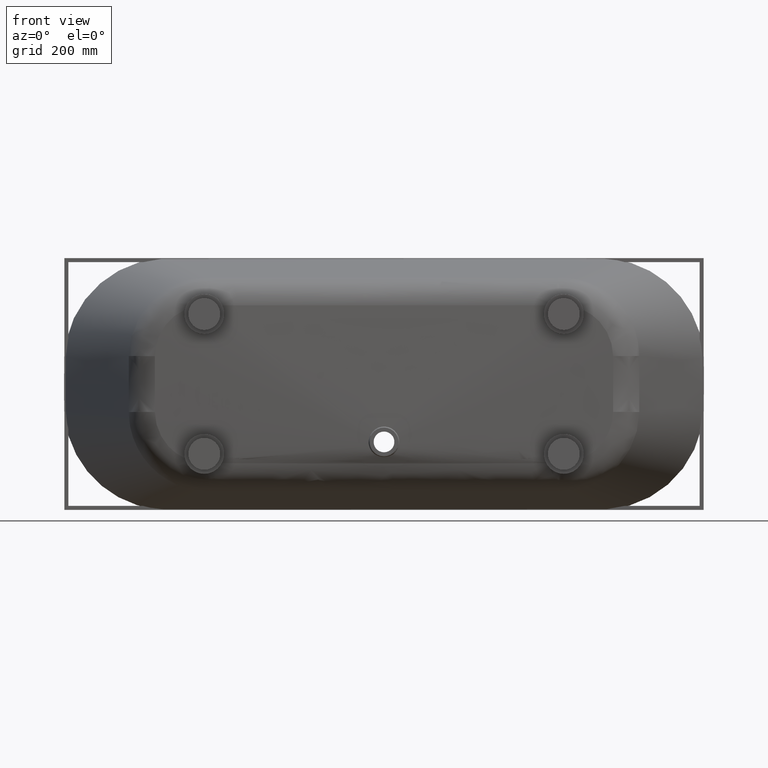
[diagram: clean part render]
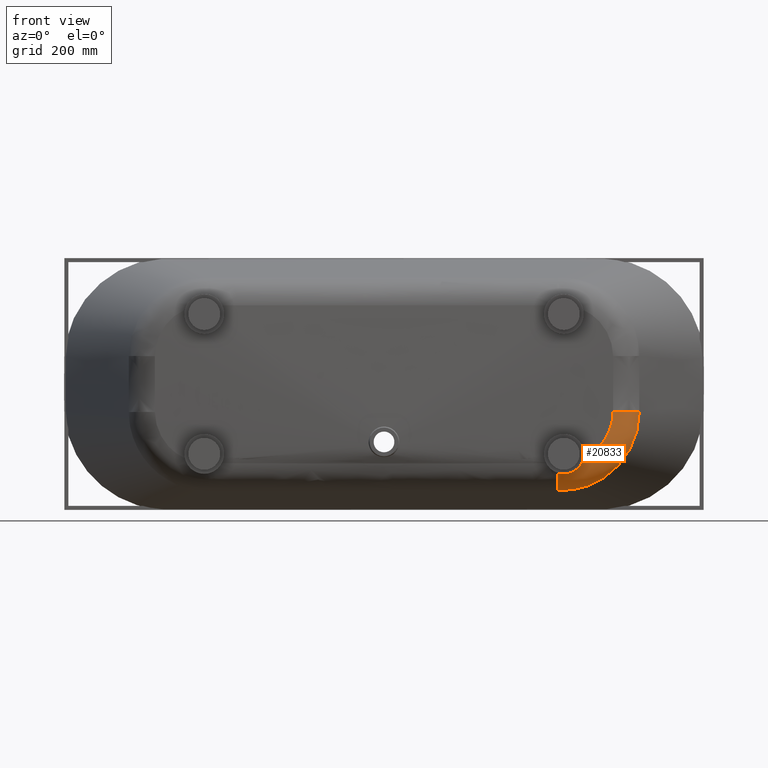
[diagram: same view with one face highlighted and labeled with its STEP entity id]
A machine part, front view. The second image highlights one B-rep face of the part: STEP entity #20833.
In plain terms, the highlighted face is a freeform B-spline surface patch.
Its self-contained STEP definition (entity closure, byte-faithful):
#54 = ORIENTED_EDGE ( 'NONE', *, *, #9191, .T. ) ;
#65 = CARTESIAN_POINT ( 'NONE',  ( 573.0886257730436455, -478.0000000000002842, -78.46987332694597228 ) ) ;
#192 = CARTESIAN_POINT ( 'NONE',  ( 437.4353961503577466, -472.6616392978509680, -223.4628567276149624 ) ) ;
#225 = CARTESIAN_POINT ( 'NONE',  ( 434.9999999996827000, -416.1702683055711987, -266.1599204995744685 ) ) ;
#306 = CARTESIAN_POINT ( 'NONE',  ( 634.5267496900142987, -431.7953774644725513, -111.2699525916564482 ) ) ;
#357 = CARTESIAN_POINT ( 'NONE',  ( 443.7805902656617718, -477.9999999999391207, -258.8936058773050490 ) ) ;
#381 = ORIENTED_EDGE ( 'NONE', *, *, #12260, .F. ) ;
#423 = CARTESIAN_POINT ( 'NONE',  ( 538.1962782915441039, -477.9998007985757909, -157.7312274065932058 ) ) ;
#486 = CARTESIAN_POINT ( 'NONE',  ( 446.6617214467662507, -478.0000000000000000, -196.6383647358110238 ) ) ;
#552 = CARTESIAN_POINT ( 'NONE',  ( 570.7361832692664620, -477.9998978767289373, -95.38358764069305096 ) ) ;
#618 = CARTESIAN_POINT ( 'NONE',  ( 446.8932409166740740, -416.1702683055699481, -266.1599204995746391 ) ) ;
#743 = CARTESIAN_POINT ( 'NONE',  ( 447.1639726251153775, -478.0000000000264322, -258.8733101878713683 ) ) ;
#873 = CARTESIAN_POINT ( 'NONE',  ( 452.5553948300703837, -477.9999999999997726, -196.5871342711737668 ) ) ;
#1005 = CARTESIAN_POINT ( 'NONE',  ( 485.8934141694696791, -419.2727195207389173, -261.8020736186981026 ) ) ;
#1137 = CARTESIAN_POINT ( 'NONE',  ( 499.3739082116119334, -477.9999999999380975, -247.3444760014991175 ) ) ;
#1275 = CARTESIAN_POINT ( 'NONE',  ( 495.1779928445004089, -478.0000000000002842, -187.0466768279913197 ) ) ;
#1348 = CARTESIAN_POINT ( 'NONE',  ( 610.0138062853071688, -429.4727528344251368, -172.9325443346412783 ) ) ;
#1369 = CARTESIAN_POINT ( 'NONE',  ( 451.4326767151388253, -471.9748525672269466, -224.9845657112300330 ) ) ;
#1406 = CARTESIAN_POINT ( 'NONE',  ( 564.6511335629800215, -425.6629355612175800, -224.3768408308983737 ) ) ;
#1500 = CARTESIAN_POINT ( 'NONE',  ( 478.5854754929385422, -474.1764195997484421, -216.0288547126379228 ) ) ;
#1537 = CARTESIAN_POINT ( 'NONE',  ( 565.6072923603126128, -477.9999999996624069, -204.9718701351500272 ) ) ;
#1633 = CARTESIAN_POINT ( 'NONE',  ( 495.2900722803976805, -477.4798846323801058, -196.3703819351741799 ) ) ;
#1670 = CARTESIAN_POINT ( 'NONE',  ( 543.9820429255718182, -477.9999999999998295, -150.8619272394932409 ) ) ;
#1795 = CARTESIAN_POINT ( 'NONE',  ( 612.5593392567832325, -429.6954591779399948, -168.6361279607150720 ) ) ;
#1923 = CARTESIAN_POINT ( 'NONE',  ( 612.4277310601273712, -477.9999999995126814, -129.8350634854696182 ) ) ;
#1996 = CARTESIAN_POINT ( 'NONE',  ( 478.4404288690751628, -418.6769276533245829, -263.3488209993474811 ) ) ;
#2023 = CARTESIAN_POINT ( 'NONE',  ( 449.6836161935396490, -416.3906878409483170, -266.1165642003754783 ) ) ;
#2050 = CARTESIAN_POINT ( 'NONE',  ( 572.1252862683572857, -478.0000000000002842, -87.24339655620548228 ) ) ;
#2208 = CARTESIAN_POINT ( 'NONE',  ( 573.4893116002044735, -477.9999073431862939, -69.62306814127596510 ) ) ;
#2269 = CARTESIAN_POINT ( 'NONE',  ( 434.9999999996827000, -416.1702683055711987, -266.1599204995744685 ) ) ;
#2344 = EDGE_CURVE ( 'NONE', #14571, #9780, #5731, .T. ) ;
#2346 = CARTESIAN_POINT ( 'NONE',  ( 442.6830164824393137, -477.9999999999085958, -258.8936058772441697 ) ) ;
#2411 = CARTESIAN_POINT ( 'NONE',  ( 524.6147769033215127, -477.9997369900738704, -169.9604680047809211 ) ) ;
#2477 = CARTESIAN_POINT ( 'NONE',  ( 446.5931230853111629, -478.0000000000000000, -196.6383647358045437 ) ) ;
#2543 = CARTESIAN_POINT ( 'NONE',  ( 434.9999999996827000, -408.0000000000000000, -196.6383647358045437 ) ) ;
#2544 = CARTESIAN_POINT ( 'NONE',  ( 566.3978247774394958, -477.9998847380292659, -111.4770321645764000 ) ) ;
#2609 = CARTESIAN_POINT ( 'NONE',  ( 446.8675165311283308, -416.1702683055737566, -266.1599204995741843 ) ) ;
#2738 = CARTESIAN_POINT ( 'NONE',  ( 446.9459819547212192, -477.9999999999981810, -258.8894884258040179 ) ) ;
#2869 = CARTESIAN_POINT ( 'NONE',  ( 447.8960708604777778, -477.9999999999997726, -196.6346360991610709 ) ) ;
#3000 = CARTESIAN_POINT ( 'NONE',  ( 482.5732463055192056, -419.0073501222201457, -262.4952820857695315 ) ) ;
#3133 = CARTESIAN_POINT ( 'NONE',  ( 497.8478218275965901, -478.0000000004595222, -247.9106302841020408 ) ) ;
#3265 = CARTESIAN_POINT ( 'NONE',  ( 491.1064357213127209, -478.0000000000002842, -188.6634699372950763 ) ) ;
#3329 = CIRCLE ( 'NONE', #18245, 70.00000000000000000 ) ;
#3344 = CARTESIAN_POINT ( 'NONE',  ( 628.7540072190387264, -431.1839204281566822, -132.7501187266869636 ) ) ;
#3399 = CARTESIAN_POINT ( 'NONE',  ( 556.6113836223725002, -425.0021029172066847, -230.5400081809526682 ) ) ;
#3472 = CARTESIAN_POINT ( 'NONE',  ( 548.6110930624508910, -424.3472552611304991, -235.9283099623956446 ) ) ;
#3492 = CARTESIAN_POINT ( 'NONE',  ( 471.9612503459487698, -473.2189779846361262, -220.0065808858117293 ) ) ;
#3528 = CARTESIAN_POINT ( 'NONE',  ( 563.3476642802489778, -478.0000000003373657, -207.1638910680986783 ) ) ;
#3623 = CARTESIAN_POINT ( 'NONE',  ( 491.7697075696428328, -476.7230824716631332, -202.4917179789220256 ) ) ;
#3658 = CARTESIAN_POINT ( 'NONE',  ( 538.1767267167757609, -477.9999999999998295, -157.4110450102656671 ) ) ;
#3791 = CARTESIAN_POINT ( 'NONE',  ( 610.8507527798909678, -429.5457518787771392, -171.5506391761743146 ) ) ;
#3837 = CARTESIAN_POINT ( 'NONE',  ( 438.9634243892502354, -416.1702683055711987, -266.1599204995744685 ) ) ;
#3867 = CARTESIAN_POINT ( 'NONE',  ( 613.2549228993253791, -429.7567398608963458, -167.4108355604317921 ) ) ;
#3922 = CARTESIAN_POINT ( 'NONE',  ( 610.4257097775730472, -478.0000000010923031, -135.5625508089605944 ) ) ;
#4049 = CARTESIAN_POINT ( 'NONE',  ( 571.4188503441126841, -478.0000000000000568, -91.60634561000527754 ) ) ;
#4111 = EDGE_CURVE ( 'NONE', #20804, #14571, #6302, .T. ) ;
#4263 = CARTESIAN_POINT ( 'NONE',  ( 573.3754197244743409, -408.0000000000000000, -69.62230265949250452 ) ) ;
#4320 = VERTEX_POINT ( 'NONE', #10541 ) ;
#4343 = CARTESIAN_POINT ( 'NONE',  ( 439.3902951327621622, -478.0000000001827516, -258.8936058776096729 ) ) ;
#4409 = CARTESIAN_POINT ( 'NONE',  ( 509.6674760616244271, -477.9996115743240921, -180.2311119960876340 ) ) ;
#4479 = CARTESIAN_POINT ( 'NONE',  ( 445.9757378322638601, -478.0000000000000000, -196.6383647358045437 ) ) ;
#4540 = CARTESIAN_POINT ( 'NONE',  ( 559.1330053305266574, -477.9998723885063328, -128.1000741845137441 ) ) ;
#4610 = CARTESIAN_POINT ( 'NONE',  ( 446.8503669407656389, -416.1702683055713692, -266.1599204995744685 ) ) ;
#4741 = CARTESIAN_POINT ( 'NONE',  ( 446.9331573740669796, -478.0000000000003411, -258.8904388846374900 ) ) ;
#4875 = CARTESIAN_POINT ( 'NONE',  ( 447.6218916789876516, -478.0000000000001137, -196.6365333417815862 ) ) ;
#5002 = CARTESIAN_POINT ( 'NONE',  ( 475.9032263410159089, -418.4744954998387243, -263.7045845105976127 ) ) ;
#5135 = CARTESIAN_POINT ( 'NONE',  ( 493.2532571980710827, -477.9999999990786250, -249.5480536492350438 ) ) ;
#5273 = CARTESIAN_POINT ( 'NONE',  ( 485.8771228799020605, -478.0000000000002842, -190.4253380940246814 ) ) ;
#5280 = B_SPLINE_CURVE_WITH_KNOTS ( 'NONE', 3,
 ( #11522, #19659, #1369, #9522, #17657, #25779, #7515, #15666, #23778, #5504, #13663, #21786, #3492, #11648, #19791, #1500, #9652, #17787, #25906, #7645, #15796, #23905, #5634, #13792, #21912, #3623, #11777, #19918, #1633, #9783, #17916, #26033 ),
 .UNSPECIFIED., .F., .F.,
 ( 4, 2, 2, 2, 2, 2, 2, 2, 2, 2, 2, 2, 2, 2, 2, 4 ),
 ( 0.01520723617178189151, 0.01732675837491559970, 0.01944628057804930615, 0.02368532498431671907, 0.02792436939058413545, 0.03216341379685155183, 0.04064150260938633602, 0.04488054701565381138, 0.04700006921878758376, 0.04911959142192135613, 0.05759768023445623053, 0.06183672464072366426, 0.06395624684385743663, 0.06607576904699120901, 0.07455385785952624300, 0.08303194667206129087 ),
 .UNSPECIFIED. ) ;
#5349 = CARTESIAN_POINT ( 'NONE',  ( 638.9447295274957241, -432.5045178641689745, -70.06300233050511395 ) ) ;
#5407 = CARTESIAN_POINT ( 'NONE',  ( 551.0703604494387946, -424.5483520583987342, -234.3444978260664584 ) ) ;
#5504 = CARTESIAN_POINT ( 'NONE',  ( 463.9988881943376100, -472.4413358019829161, -223.0211959451491737 ) ) ;
#5540 = CARTESIAN_POINT ( 'NONE',  ( 562.1999077343509725, -478.0000000002456773, -208.2498741059704912 ) ) ;
#5634 = CARTESIAN_POINT ( 'NONE',  ( 489.3031213938231758, -476.1942201185776185, -205.9394911826038026 ) ) ;
#5670 = CARTESIAN_POINT ( 'NONE',  ( 535.1035760383892921, -477.9999999999998295, -160.5387184394888607 ) ) ;
#5731 = B_SPLINE_CURVE_WITH_KNOTS ( 'NONE', 3,
 ( #5349, #17637, #22705, #21503, #25759, #9500, #306, #13377, #20710, #23494, #25098, #3344, #6141, #19100, #18708, #16329, #3867, #1348, #15239, #13644, #9231, #7361, #5874, #26015, #14164, #7496, #13107, #12019, #18970, #11627, #25887, #3472, #15647, #25488, #23758, #17505, #5745, #11502, #22834, #12972, #21364, #13772, #8836, #1996, #18838, #14193, #10966, #8971, #15375, #10023, #2023, #11366, #8022, #14034, #25356 ),
 .UNSPECIFIED., .F., .F.,
 ( 4, 2, 2, 2, 2, 2, 2, 2, 2, 2, 2, 2, 2, 2, 2, 2, 2, 2, 2, 2, 2, 2, 2, 2, 2, 1, 2, 4 ),
 ( 0.0000000000000000000, 0.01913028228294043342, 0.03826056456588086685, 0.04304313513661596480, 0.04782570570735106968, 0.05739084684882134191, 0.07652112913176190023, 0.09565141141470245856, 0.1052165525561727238, 0.1147816936976430030, 0.1339119759805835475, 0.1530422582635241058, 0.1626073994049942462, 0.1673899699757293580, 0.1721725405464644143, 0.1913028228294052502, 0.2104331051123461138, 0.2295633873952869219, 0.2391285285367574509, 0.2439110991074927015, 0.2486936696782279244, 0.2678239519611697039, 0.2869542342441115390, 0.2965193753855824288, 0.3013019459563177627, 0.3036932312416854574, 0.3048888738843692492, 0.3060845165270529855 ),
 .UNSPECIFIED. ) ;
#5745 = CARTESIAN_POINT ( 'NONE',  ( 515.0476052702929337, -421.6189912716114918, -252.9623365642027011 ) ) ;
#5800 = CARTESIAN_POINT ( 'NONE',  ( 607.3050228663880716, -429.2376709150885290, -177.2584642051424737 ) ) ;
#5845 = CARTESIAN_POINT ( 'NONE',  ( 446.8902931056431953, -416.1702683055711987, -266.1599204995744685 ) ) ;
#5874 = CARTESIAN_POINT ( 'NONE',  ( 587.3086710874168830, -427.5407645826810494, -203.3272316902346120 ) ) ;
#5934 = CARTESIAN_POINT ( 'NONE',  ( 605.8639470152299964, -477.9999999989049684, -146.8408794071616796 ) ) ;
#6063 = CARTESIAN_POINT ( 'NONE',  ( 569.5527574998129694, -478.0000000000000568, -100.2794717568797580 ) ) ;
#6141 = CARTESIAN_POINT ( 'NONE',  ( 626.6534500094346640, -430.9792130146822160, -138.7131511312757937 ) ) ;
#6195 = CARTESIAN_POINT ( 'NONE',  ( 638.9447295274957241, -432.5045178641688040, -70.06300233050782822 ) ) ;
#6232 = EDGE_CURVE ( 'NONE', #9780, #24992, #12024, .T. ) ;
#6302 = CIRCLE ( 'NONE', #21223, 70.00000000000001421 ) ;
#6321 = CARTESIAN_POINT ( 'NONE',  ( 447.4432169266584651, -472.0189116476824438, -224.9507332363500041 ) ) ;
#6354 = CARTESIAN_POINT ( 'NONE',  ( 437.1951475661485915, -477.9999999999999432, -258.8936058773659852 ) ) ;
#6485 = CARTESIAN_POINT ( 'NONE',  ( 445.4269509406374254, -478.0000000000000000, -196.6383647357969267 ) ) ;
#6551 = CARTESIAN_POINT ( 'NONE',  ( 554.6210788028548677, -477.9998595276720721, -136.0735523484808596 ) ) ;
#6619 = CARTESIAN_POINT ( 'NONE',  ( 446.7989181696754599, -416.1702683055713692, -266.1599204995744685 ) ) ;
#6684 = CARTESIAN_POINT ( 'NONE',  ( 572.9789769872375018, -477.9999015967673586, -81.82392743133601698 ) ) ;
#6752 = CARTESIAN_POINT ( 'NONE',  ( 446.9075075973807429, -477.9999999999992610, -258.8923372058623045 ) ) ;
#6879 = CARTESIAN_POINT ( 'NONE',  ( 447.2104707130955035, -478.0000000000001137, -196.6380315755830281 ) ) ;
#7012 = CARTESIAN_POINT ( 'NONE',  ( 472.5542584960212480, -418.2072282428131871, -264.2203881724587973 ) ) ;
#7143 = CARTESIAN_POINT ( 'NONE',  ( 490.1719540020301906, -478.0000000000609930, -250.5567702532391650 ) ) ;
#7281 = CARTESIAN_POINT ( 'NONE',  ( 484.8242464429399092, -477.9999999999997726, -190.7647174973596691 ) ) ;
#7361 = CARTESIAN_POINT ( 'NONE',  ( 591.4926238962249272, -427.8913205247347378, -198.5971059922453037 ) ) ;
#7420 = CARTESIAN_POINT ( 'NONE',  ( 539.6305101104744608, -423.6142027541336006, -241.3552770947605950 ) ) ;
#7496 = CARTESIAN_POINT ( 'NONE',  ( 574.9164307277719672, -426.5105451484773766, -215.5906478640018804 ) ) ;
#7515 = CARTESIAN_POINT ( 'NONE',  ( 457.0941472691405352, -472.0647096693545564, -224.5143267549208019 ) ) ;
#7553 = CARTESIAN_POINT ( 'NONE',  ( 558.7098603472225022, -477.9999999995067128, -211.4700306545070987 ) ) ;
#7645 = CARTESIAN_POINT ( 'NONE',  ( 483.6149181921070408, -475.0425129760423033, -212.1220663729173452 ) ) ;
#7683 = CARTESIAN_POINT ( 'NONE',  ( 531.0438103880110248, -477.9999999999998295, -164.2602134471731858 ) ) ;
#7773 = VERTEX_POINT ( 'NONE', #21340 ) ;
#7813 = CARTESIAN_POINT ( 'NONE',  ( 605.4647128723989908, -429.0789916788335745, -180.0583308184006910 ) ) ;
#7944 = CARTESIAN_POINT ( 'NONE',  ( 603.3003191839517285, -477.9999999996321094, -152.3971918830020797 ) ) ;
#8022 = CARTESIAN_POINT ( 'NONE',  ( 447.6890162577493584, -416.2332591753877864, -266.1512693933187279 ) ) ;
#8079 = CARTESIAN_POINT ( 'NONE',  ( 568.4055859369434529, -477.9999999999999432, -104.5310713375132678 ) ) ;
#8207 = CARTESIAN_POINT ( 'NONE',  ( 638.9245777879274328, -432.4383066487607152, -76.74285656962344149 ) ) ;
#8333 = CARTESIAN_POINT ( 'NONE',  ( 439.9029306882536616, -472.4173225180675217, -224.0351502015545577 ) ) ;
#8367 = CARTESIAN_POINT ( 'NONE',  ( 434.9999999996827000, -477.9999999999999432, -258.8936058773659852 ) ) ;
#8465 = B_SPLINE_CURVE_WITH_KNOTS ( 'NONE', 3,
 ( #14572, #22690, #4409, #12565, #20696, #2411, #10558, #18695, #423, #8568, #16706, #24820, #6551, #14703, #22818, #4540, #12695, #20828, #2544, #10688, #18824, #552, #8698, #16833, #24949, #6684, #14835, #22953 ),
 .UNSPECIFIED., .F., .F.,
 ( 4, 2, 2, 2, 2, 2, 2, 2, 2, 2, 2, 2, 2, 4 ),
 ( 0.06554687530234867832, 0.08386615352461078421, 0.09302579263574184409, 0.1021854317468728901, 0.1205047099691353152, 0.1388239881913977403, 0.1434038077469632633, 0.1479836273025288418, 0.1571432664136598323, 0.1754625446359217578, 0.1846221837470527483, 0.1892020033026182713, 0.1937818228581837665, 0.2121011010804458863 ),
 .UNSPECIFIED. ) ;
#8502 = CARTESIAN_POINT ( 'NONE',  ( 443.7805902656617718, -478.0000000000000000, -196.6383647358197777 ) ) ;
#8568 = CARTESIAN_POINT ( 'NONE',  ( 546.0930614928794284, -477.9998329187052946, -148.5966443296817658 ) ) ;
#8632 = CARTESIAN_POINT ( 'NONE',  ( 446.7646189889514403, -416.1702683055725061, -266.1599204995741275 ) ) ;
#8674 = ORIENTED_EDGE ( 'NONE', *, *, #4111, .F. ) ;
#8698 = CARTESIAN_POINT ( 'NONE',  ( 571.0415479828261596, -477.9998985255999173, -93.88663680595594485 ) ) ;
#8764 = CARTESIAN_POINT ( 'NONE',  ( 446.8932409166740172, -477.9999999999985789, -258.8936058773666673 ) ) ;
#8836 = CARTESIAN_POINT ( 'NONE',  ( 490.8209255921903491, -419.6669363332645162, -260.7355594302086956 ) ) ;
#8891 = CARTESIAN_POINT ( 'NONE',  ( 447.0733050252194403, -477.9999999999998295, -196.6383063805239999 ) ) ;
#8971 = CARTESIAN_POINT ( 'NONE',  ( 454.8535470913120093, -416.7996026715037488, -265.9269269934124509 ) ) ;
#9025 = CARTESIAN_POINT ( 'NONE',  ( 462.4676873706532092, -417.4033660439405367, -265.5004605231662822 ) ) ;
#9156 = CARTESIAN_POINT ( 'NONE',  ( 483.9688703803324756, -477.9999999999391207, -252.4129674264593746 ) ) ;
#9191 = EDGE_CURVE ( 'NONE', #4320, #24992, #3329, .T. ) ;
#9231 = CARTESIAN_POINT ( 'NONE',  ( 599.3940394999729051, -428.5592336406318736, -188.7451821012003279 ) ) ;
#9285 = CARTESIAN_POINT ( 'NONE',  ( 482.7042465971091474, -477.9999999999997726, -191.4170816829569048 ) ) ;
#9425 = CARTESIAN_POINT ( 'NONE',  ( 533.7301887748481022, -423.1334568159929859, -244.5620608620261862 ) ) ;
#9500 = CARTESIAN_POINT ( 'NONE',  ( 634.8560374724937674, -431.8334926330766166, -109.7017939933677155 ) ) ;
#9522 = CARTESIAN_POINT ( 'NONE',  ( 452.8587676321387789, -471.9804046467476724, -224.9233093808474848 ) ) ;
#9560 = CARTESIAN_POINT ( 'NONE',  ( 556.3386302891649393, -478.0000000004880576, -213.5496727503352759 ) ) ;
#9652 = CARTESIAN_POINT ( 'NONE',  ( 479.1618349583478107, -474.2701522571627493, -215.6212777515771393 ) ) ;
#9690 = CARTESIAN_POINT ( 'NONE',  ( 530.2209131406214055, -477.9999999999996021, -164.9950837005496851 ) ) ;
#9780 = VERTEX_POINT ( 'NONE', #16959 ) ;
#9783 = CARTESIAN_POINT ( 'NONE',  ( 497.3979463018703200, -477.8703037292117415, -191.1653505246190434 ) ) ;
#9818 = CARTESIAN_POINT ( 'NONE',  ( 599.7422394730955375, -428.5885560098029714, -188.3000706451864232 ) ) ;
#9868 = ORIENTED_EDGE ( 'NONE', *, *, #15640, .F. ) ;
#9945 = CARTESIAN_POINT ( 'NONE',  ( 599.0181525650660888, -478.0000000001835474, -160.5942884665195720 ) ) ;
#10023 = CARTESIAN_POINT ( 'NONE',  ( 450.8783330359888168, -416.4850959823165226, -266.0830715815297935 ) ) ;
#10077 = CARTESIAN_POINT ( 'NONE',  ( 565.6956361015845687, -477.9999999999999432, -112.8693603731010171 ) ) ;
#10202 = CARTESIAN_POINT ( 'NONE',  ( 638.5707609667275619, -432.3482809066305776, -83.40038789530646568 ) ) ;
#10362 = FACE_OUTER_BOUND ( 'NONE', #15050, .T. ) ;
#10492 = CARTESIAN_POINT ( 'NONE',  ( 442.6830164823783207, -478.0000000000000000, -196.6383647357740756 ) ) ;
#10541 = CARTESIAN_POINT ( 'NONE',  ( 434.9999999996827000, -472.9688356765741446, -222.6969600707473660 ) ) ;
#10558 = CARTESIAN_POINT ( 'NONE',  ( 526.9856362749233085, -477.9997506664495290, -168.0473069600432439 ) ) ;
#10626 = CARTESIAN_POINT ( 'NONE',  ( 446.6617214467625558, -416.1702683055686975, -266.1599204995745822 ) ) ;
#10687 = DIRECTION ( 'NONE',  ( 1.000000000000000000, 0.0000000000000000000, 0.0000000000000000000 ) ) ;
#10688 = CARTESIAN_POINT ( 'NONE',  ( 568.9827460735858722, -477.9998931034030534, -102.7793556822752805 ) ) ;
#10752 = CARTESIAN_POINT ( 'NONE',  ( 446.8675165311283308, -478.0000000000028422, -258.8936058773651894 ) ) ;
#10887 = CARTESIAN_POINT ( 'NONE',  ( 446.9275395080286444, -477.9999999999998295, -196.6383595171480749 ) ) ;
#10966 = CARTESIAN_POINT ( 'NONE',  ( 459.6085745840296681, -417.1765695739296689, -265.6450779748464015 ) ) ;
#11023 = CARTESIAN_POINT ( 'NONE',  ( 455.6920035790253678, -416.8650453271337710, -265.9972591242488988 ) ) ;
#11151 = CARTESIAN_POINT ( 'NONE',  ( 480.8471254517709212, -477.9999999999999432, -253.2599643228501805 ) ) ;
#11286 = CARTESIAN_POINT ( 'NONE',  ( 481.6412109864468789, -478.0000000000000000, -191.7287886847208824 ) ) ;
#11366 = CARTESIAN_POINT ( 'NONE',  ( 448.4870971254085816, -416.2962362391631359, -266.1388810179951747 ) ) ;
#11423 = CARTESIAN_POINT ( 'NONE',  ( 521.5757889980376376, -422.1469117636059991, -250.3625965378343210 ) ) ;
#11502 = CARTESIAN_POINT ( 'NONE',  ( 510.5924846656729983, -421.2590499894017739, -254.6252393040355173 ) ) ;
#11522 = CARTESIAN_POINT ( 'NONE',  ( 450.0000000000001705, -471.9830808918115963, -224.9999999999998863 ) ) ;
#11556 = CARTESIAN_POINT ( 'NONE',  ( 549.0804455189360169, -477.9999999990222932, -219.6032068003770235 ) ) ;
#11627 = CARTESIAN_POINT ( 'NONE',  ( 564.0303098676887430, -425.6113950105441290, -224.9643097586241822 ) ) ;
#11648 = CARTESIAN_POINT ( 'NONE',  ( 475.6380090420186662, -473.7232104806088842, -217.9495599780540260 ) ) ;
#11684 = CARTESIAN_POINT ( 'NONE',  ( 528.5529794969593240, -477.9999999999996021, -166.4457505318763992 ) ) ;
#11777 = CARTESIAN_POINT ( 'NONE',  ( 492.1574185158826822, -476.8068885225607119, -201.8933942444149920 ) ) ;
#11814 = CARTESIAN_POINT ( 'NONE',  ( 595.6581716365241164, -428.2423333717737250, -193.5854104689566668 ) ) ;
#11944 = CARTESIAN_POINT ( 'NONE',  ( 597.5119435710763582, -477.9999999994482209, -163.3128351285996018 ) ) ;
#11992 = CARTESIAN_POINT ( 'NONE',  ( 434.9999999996827000, -416.1702683055711987, -266.1599204995744685 ) ) ;
#12019 = CARTESIAN_POINT ( 'NONE',  ( 571.3474032446770252, -426.2153655388730158, -218.7762032600065538 ) ) ;
#12024 = B_SPLINE_CURVE_WITH_KNOTS ( 'NONE', 3,
 ( #16007, #24115, #5845, #14004, #22128, #3837, #11992 ),
 .UNSPECIFIED., .F., .F.,
 ( 4, 3, 4 ),
 ( -5.981177358949096856E-08, 0.0000000000000000000, 0.01189027316870266970 ),
 .UNSPECIFIED. ) ;
#12073 = CARTESIAN_POINT ( 'NONE',  ( 564.1329251942596557, -478.0000000000001137, -116.9560765566921106 ) ) ;
#12205 = CARTESIAN_POINT ( 'NONE',  ( 637.1996950728530464, -432.1232637725021846, -96.64808954372689698 ) ) ;
#12260 = EDGE_CURVE ( 'NONE', #4320, #7773, #17544, .T. ) ;
#12414 = DIRECTION ( 'NONE',  ( 0.006720975387560656003, 0.0000000000000000000, 0.9999774139898561787 ) ) ;
#12495 = CARTESIAN_POINT ( 'NONE',  ( 439.3902951328838640, -478.0000000000000000, -196.6383647358654514 ) ) ;
#12565 = CARTESIAN_POINT ( 'NONE',  ( 517.2809097524058188, -477.9996818561193663, -175.3264705288441405 ) ) ;
#12631 = CARTESIAN_POINT ( 'NONE',  ( 446.5931230853111629, -416.1702683055730745, -266.1599204995742411 ) ) ;
#12695 = CARTESIAN_POINT ( 'NONE',  ( 560.4937072307016024, -477.9998749122082700, -125.3848271592191423 ) ) ;
#12762 = CARTESIAN_POINT ( 'NONE',  ( 446.8503669407656957, -478.0000000000008527, -258.8936058773665536 ) ) ;
#12891 = CARTESIAN_POINT ( 'NONE',  ( 446.9189649666785726, -477.9999999999998295, -196.6383617647276481 ) ) ;
#12972 = CARTESIAN_POINT ( 'NONE',  ( 506.0888227553058414, -420.8955559918444465, -256.2009672366129962 ) ) ;
#13027 = CARTESIAN_POINT ( 'NONE',  ( 448.4528628825200371, -416.2935336951015870, -266.1395386026778169 ) ) ;
#13107 = CARTESIAN_POINT ( 'NONE',  ( 573.7368832012674602, -426.4129240227330797, -216.6610071559114488 ) ) ;
#13161 = CARTESIAN_POINT ( 'NONE',  ( 474.5571248788911589, -478.0000000000000000, -254.7953515601907952 ) ) ;
#13296 = CARTESIAN_POINT ( 'NONE',  ( 478.4490555458093581, -478.0000000000000000, -192.6192667575278961 ) ) ;
#13377 = CARTESIAN_POINT ( 'NONE',  ( 633.8326347127141389, -431.7167727612567205, -114.3889454477049696 ) ) ;
#13435 = CARTESIAN_POINT ( 'NONE',  ( 515.3205448961293769, -421.6407019485107526, -252.9576178724388171 ) ) ;
#13568 = CARTESIAN_POINT ( 'NONE',  ( 544.0642651652391351, -478.0000000002409593, -223.3770257476649874 ) ) ;
#13644 = CARTESIAN_POINT ( 'NONE',  ( 603.1116244915516518, -428.8761383169973556, -183.6234540437117744 ) ) ;
#13663 = CARTESIAN_POINT ( 'NONE',  ( 465.3594473027006302, -472.5496146677992328, -222.6038191079087767 ) ) ;
#13700 = CARTESIAN_POINT ( 'NONE',  ( 527.7071694930505146, -477.9999999999996589, -167.1621829862454831 ) ) ;
#13772 = CARTESIAN_POINT ( 'NONE',  ( 496.9614516968641738, -420.1598647438910916, -259.1201623981519333 ) ) ;
#13792 = CARTESIAN_POINT ( 'NONE',  ( 490.5637827785450895, -476.4633778413792129, -204.2416893010475292 ) ) ;
#13827 = CARTESIAN_POINT ( 'NONE',  ( 586.9535976558150878, -427.5108099593018665, -203.7318342334293959 ) ) ;
#13958 = CARTESIAN_POINT ( 'NONE',  ( 594.3823061674718247, -478.0000000005520633, -168.6480937318783333 ) ) ;
#14004 = CARTESIAN_POINT ( 'NONE',  ( 446.8902731683853631, -416.1702683055711987, -266.1599204995744685 ) ) ;
#14034 = CARTESIAN_POINT ( 'NONE',  ( 447.2876302416316321, -416.2015968513250641, -266.1562386638039470 ) ) ;
#14088 = CARTESIAN_POINT ( 'NONE',  ( 560.5934311484813861, -478.0000000000001137, -124.9652077036146665 ) ) ;
#14164 = CARTESIAN_POINT ( 'NONE',  ( 578.4100003452203964, -426.8000197000768026, -212.3417132585366005 ) ) ;
#14193 = CARTESIAN_POINT ( 'NONE',  ( 462.7659452561671287, -417.4274943279069703, -265.3787088552055593 ) ) ;
#14220 = CARTESIAN_POINT ( 'NONE',  ( 636.1829507539416682, -431.9884682242317808, -103.2367674620924873 ) ) ;
#14345 = CARTESIAN_POINT ( 'NONE',  ( 621.9429569168067928, -477.9999999999997158, -69.94873125431863059 ) ) ;
#14472 = CARTESIAN_POINT ( 'NONE',  ( 448.7176188121518976, -471.9945801782820354, -224.9999999999998010 ) ) ;
#14505 = CARTESIAN_POINT ( 'NONE',  ( 437.1951475660569599, -478.0000000000000000, -196.6383647358045437 ) ) ;
#14571 = VERTEX_POINT ( 'NONE', #16086 ) ;
#14572 = CARTESIAN_POINT ( 'NONE',  ( 498.8485224660500421, -477.9994523813147680, -185.6687324872176816 ) ) ;
#14636 = CARTESIAN_POINT ( 'NONE',  ( 445.9757378322638601, -416.1702683055561351, -266.1599204995762875 ) ) ;
#14703 = CARTESIAN_POINT ( 'NONE',  ( 556.1797279596680710, -477.9998640973279862, -133.4480337096393328 ) ) ;
#14771 = CARTESIAN_POINT ( 'NONE',  ( 446.7989181696755168, -477.9999999999992610, -258.8936058773650757 ) ) ;
#14835 = CARTESIAN_POINT ( 'NONE',  ( 573.4484833556075500, -477.9999068339649284, -75.74424688563260588 ) ) ;
#14901 = CARTESIAN_POINT ( 'NONE',  ( 446.9018156856307655, -477.9999999999998295, -196.6383645035888605 ) ) ;
#15030 = CARTESIAN_POINT ( 'NONE',  ( 448.0268821078967676, -416.2599162030759885, -266.1464892821428521 ) ) ;
#15050 = EDGE_LOOP ( 'NONE', ( #23524, #9868, #381, #54, #22996, #24139, #8674 ) ) ;
#15161 = CARTESIAN_POINT ( 'NONE',  ( 471.3893320992418126, -478.0000000002418687, -255.4828335396497891 ) ) ;
#15239 = CARTESIAN_POINT ( 'NONE',  ( 608.3327500941194330, -429.3266961018824759, -175.6426207793039111 ) ) ;
#15298 = CARTESIAN_POINT ( 'NONE',  ( 476.3143225553162097, -478.0000000000001705, -193.1542179674681847 ) ) ;
#15375 = CARTESIAN_POINT ( 'NONE',  ( 453.2653748128950042, -416.6738498358325273, -266.0012515122360810 ) ) ;
#15431 = CARTESIAN_POINT ( 'NONE',  ( 507.2660169092079059, -420.9905225993990712, -255.8022806312643809 ) ) ;
#15570 = CARTESIAN_POINT ( 'NONE',  ( 533.6662932723637596, -477.9999999997576197, -230.4229739786777884 ) ) ;
#15640 = EDGE_CURVE ( 'NONE', #7773, #20412, #5280, .T. ) ;
#15647 = CARTESIAN_POINT ( 'NONE',  ( 543.2717089968767823, -423.9112550068813334, -239.2244349388043076 ) ) ;
#15666 = CARTESIAN_POINT ( 'NONE',  ( 459.8783859900726156, -472.1818969429405684, -224.0348138540407490 ) ) ;
#15703 = CARTESIAN_POINT ( 'NONE',  ( 525.1411794900103587, -477.9999999999996589, -169.2782730801156958 ) ) ;
#15796 = CARTESIAN_POINT ( 'NONE',  ( 485.6389300181568842, -475.4377102204289258, -210.1811792614859087 ) ) ;
#15833 = CARTESIAN_POINT ( 'NONE',  ( 582.3329545315027644, -427.1255124274324544, -208.5935671518411425 ) ) ;
#15962 = CARTESIAN_POINT ( 'NONE',  ( 592.7557090441330274, -478.0000000010962253, -171.2710613581130019 ) ) ;
#16007 = CARTESIAN_POINT ( 'NONE',  ( 446.8903329801590303, -416.1702683055713692, -266.1599204995743548 ) ) ;
#16086 = CARTESIAN_POINT ( 'NONE',  ( 638.9447295274957241, -432.5045178641689745, -70.06300233050511395 ) ) ;
#16093 = CARTESIAN_POINT ( 'NONE',  ( 558.6165548950129960, -477.9999999999993747, -128.8875856976389684 ) ) ;
#16228 = CARTESIAN_POINT ( 'NONE',  ( 633.4807338555804108, -431.6734784762580261, -116.3381852195231687 ) ) ;
#16329 = CARTESIAN_POINT ( 'NONE',  ( 614.8022935061036378, -429.8935712406297398, -164.6207697329068935 ) ) ;
#16354 = CARTESIAN_POINT ( 'NONE',  ( 621.9543300673690283, -477.9999999995070539, -76.04917569722427118 ) ) ;
#16477 = CARTESIAN_POINT ( 'NONE',  ( 443.6526546617438953, -472.1680776536209123, -224.6115954001758155 ) ) ;
#16508 = CARTESIAN_POINT ( 'NONE',  ( 434.9999999996827000, -478.0000000000000000, -196.6383647358045437 ) ) ;
#16642 = CARTESIAN_POINT ( 'NONE',  ( 445.4269509406374254, -416.1702683055711987, -266.1599204995744685 ) ) ;
#16706 = CARTESIAN_POINT ( 'NONE',  ( 549.7124768699055721, -477.9998455969472957, -143.7587019572802376 ) ) ;
#16770 = CARTESIAN_POINT ( 'NONE',  ( 446.7646189889533161, -478.0000000000000568, -258.8936058773620061 ) ) ;
#16833 = CARTESIAN_POINT ( 'NONE',  ( 571.5999795238815295, -477.9998995973859337, -90.87813022616541048 ) ) ;
#16899 = CARTESIAN_POINT ( 'NONE',  ( 446.8932409166743582, -478.0000000000000000, -196.6383647358053395 ) ) ;
#16959 = CARTESIAN_POINT ( 'NONE',  ( 446.8903329801590303, -416.1702683055713692, -266.1599204995743548 ) ) ;
#17031 = CARTESIAN_POINT ( 'NONE',  ( 447.3876922532026015, -416.2094919491053702, -266.1547841349854480 ) ) ;
#17161 = CARTESIAN_POINT ( 'NONE',  ( 461.8024347553091502, -477.9999999995140456, -257.3062134016906271 ) ) ;
#17296 = CARTESIAN_POINT ( 'NONE',  ( 472.0318901575863606, -478.0000000000001705, -194.1093070398142686 ) ) ;
#17427 = CARTESIAN_POINT ( 'NONE',  ( 505.6433371565535140, -420.8596209544556928, -256.3511803973470364 ) ) ;
#17505 = CARTESIAN_POINT ( 'NONE',  ( 517.9790740906778410, -421.8561324390666982, -251.7843935257291719 ) ) ;
#17544 = B_SPLINE_CURVE_WITH_KNOTS ( 'NONE', 3,
 ( #18464, #192, #8333, #16477, #24589, #6321, #14472, #22592 ),
 .UNSPECIFIED., .F., .F.,
 ( 4, 2, 2, 4 ),
 ( 0.0000000000000000000, 0.007603618085890950958, 0.01140542712883641993, 0.01520723617178189151 ),
 .UNSPECIFIED. ) ;
#17563 = CARTESIAN_POINT ( 'NONE',  ( 528.2795150176337984, -478.0000000012069563, -233.6941998044348452 ) ) ;
#17637 = CARTESIAN_POINT ( 'NONE',  ( 638.9253964951191165, -432.4409966167999073, -76.47147348675342471 ) ) ;
#17657 = CARTESIAN_POINT ( 'NONE',  ( 453.5689245244136600, -471.9877487610325488, -224.8775175683765610 ) ) ;
#17696 = CARTESIAN_POINT ( 'NONE',  ( 523.4023190850582523, -478.0000000000006253, -170.6367543839575092 ) ) ;
#17787 = CARTESIAN_POINT ( 'NONE',  ( 480.2998129550497879, -474.4604685070444816, -214.7796701745708106 ) ) ;
#17809 = EDGE_CURVE ( 'NONE', #20412, #20804, #8465, .T. ) ;
#17826 = CARTESIAN_POINT ( 'NONE',  ( 576.2094123501351532, -426.6176367702560128, -214.3980858036523784 ) ) ;
#17916 = CARTESIAN_POINT ( 'NONE',  ( 498.2370842950667225, -477.9903679509860694, -188.4683013458117387 ) ) ;
#17952 = CARTESIAN_POINT ( 'NONE',  ( 587.6871061324969787, -477.9999999978013534, -179.0172223881197340 ) ) ;
#18082 = CARTESIAN_POINT ( 'NONE',  ( 555.3302818453800000, -477.9999999999993747, -134.6437983185604139 ) ) ;
#18209 = CARTESIAN_POINT ( 'NONE',  ( 631.8103868015803073, -431.4943317434001528, -122.7774669625175363 ) ) ;
#18245 = AXIS2_PLACEMENT_3D ( 'NONE', #2543, #10687, #18823 ) ;
#18336 = CARTESIAN_POINT ( 'NONE',  ( 621.6716796061321020, -478.0000000002449951, -82.12960253126935584 ) ) ;
#18464 = CARTESIAN_POINT ( 'NONE',  ( 434.9999999996827000, -472.9688356765741446, -222.6969600707473660 ) ) ;
#18629 = CARTESIAN_POINT ( 'NONE',  ( 443.7805902656617718, -416.1702683055711987, -266.1599204995744685 ) ) ;
#18695 = CARTESIAN_POINT ( 'NONE',  ( 533.9178250167256010, -477.9997857448454397, -162.0269751040716812 ) ) ;
#18708 = CARTESIAN_POINT ( 'NONE',  ( 619.2275774504431638, -430.2887801089599975, -156.1682652493378498 ) ) ;
#18757 = CARTESIAN_POINT ( 'NONE',  ( 446.6617214467588042, -478.0000000000000568, -258.8936058773734317 ) ) ;
#18823 = DIRECTION ( 'NONE',  ( 0.0000000000000000000, 0.0000000000000000000, -1.000000000000000000 ) ) ;
#18824 = CARTESIAN_POINT ( 'NONE',  ( 569.7447293372900958, -477.9998955622149879, -99.84339168117982410 ) ) ;
#18838 = CARTESIAN_POINT ( 'NONE',  ( 472.2005591009196905, -418.1786779093442306, -264.3467322121560414 ) ) ;
#18891 = CARTESIAN_POINT ( 'NONE',  ( 446.8675165311278761, -478.0000000000000000, -196.6383647358028384 ) ) ;
#18970 = CARTESIAN_POINT ( 'NONE',  ( 570.1356409967719401, -426.1152720770868996, -219.8225488336949809 ) ) ;
#19023 = CARTESIAN_POINT ( 'NONE',  ( 447.1745925205527783, -416.1926841950121911, -266.1571938905195225 ) ) ;
#19100 = CARTESIAN_POINT ( 'NONE',  ( 621.8901213544826305, -430.5318620596997334, -150.4221887916068567 ) ) ;
#19158 = CARTESIAN_POINT ( 'NONE',  ( 455.3317783505243597, -477.9999999992720063, -258.1934529689883107 ) ) ;
#19288 = CARTESIAN_POINT ( 'NONE',  ( 469.8841949859015017, -477.9999999999999432, -194.5294824006631984 ) ) ;
#19422 = CARTESIAN_POINT ( 'NONE',  ( 502.3740709206009569, -420.5960483376609886, -257.4081877679922172 ) ) ;
#19562 = CARTESIAN_POINT ( 'NONE',  ( 517.1308987371218109, -477.9999999987865067, -239.7196139319686097 ) ) ;
#19659 = CARTESIAN_POINT ( 'NONE',  ( 450.7149321204254306, -471.9766699982819205, -224.9999999999999432 ) ) ;
#19695 = CARTESIAN_POINT ( 'NONE',  ( 518.1033040233749034, -478.0000000000006253, -174.5594774484042659 ) ) ;
#19791 = CARTESIAN_POINT ( 'NONE',  ( 476.8344942269824287, -473.9003705021706878, -217.2125009012109444 ) ) ;
#19829 = CARTESIAN_POINT ( 'NONE',  ( 574.9672651558594225, -426.5147514431506579, -215.5453236638142300 ) ) ;
#19918 = CARTESIAN_POINT ( 'NONE',  ( 494.0212369181420513, -477.2089129544983166, -198.8782775496346176 ) ) ;
#19958 = CARTESIAN_POINT ( 'NONE',  ( 584.0627230356998325, -478.0000000002422667, -184.0056011300128205 ) ) ;
#20086 = CARTESIAN_POINT ( 'NONE',  ( 554.1784252648216125, -477.9999999999997158, -136.5452646398234151 ) ) ;
#20212 = CARTESIAN_POINT ( 'NONE',  ( 627.8470508714846119, -431.0944930410588540, -135.4288236501791403 ) ) ;
#20309 =( BOUNDED_SURFACE ( )  B_SPLINE_SURFACE ( 3, 2, ( 
 ( #225, #8367, #16508 ),
 ( #24622, #6354, #14505 ),
 ( #22623, #4343, #12495 ),
 ( #20630, #2346, #10492 ),
 ( #18629, #357, #8502 ),
 ( #16642, #24755, #6485 ),
 ( #14636, #22756, #4479 ),
 ( #12631, #20761, #2477 ),
 ( #10626, #18757, #486 ),
 ( #8632, #16770, #24886 ),
 ( #6619, #14771, #22885 ),
 ( #4610, #12762, #20896 ),
 ( #2609, #10752, #18891 ),
 ( #618, #8764, #16899 ),
 ( #25016, #6752, #14901 ),
 ( #23018, #4741, #12891 ),
 ( #21025, #2738, #10887 ),
 ( #19023, #743, #8891 ),
 ( #17031, #25151, #6879 ),
 ( #15030, #23155, #4875 ),
 ( #13027, #21160, #2869 ),
 ( #11023, #19158, #873 ),
 ( #9025, #17161, #25277 ),
 ( #7012, #15161, #23286 ),
 ( #5002, #13161, #21290 ),
 ( #3000, #11151, #19288 ),
 ( #1005, #9156, #17296 ),
 ( #25411, #7143, #15298 ),
 ( #23420, #5135, #13296 ),
 ( #21423, #3133, #11286 ),
 ( #19422, #1137, #9285 ),
 ( #17427, #25546, #7281 ),
 ( #15431, #23550, #5273 ),
 ( #13435, #21559, #3265 ),
 ( #11423, #19562, #1275 ),
 ( #9425, #17563, #25679 ),
 ( #7420, #15570, #23688 ),
 ( #5407, #13568, #21693 ),
 ( #3399, #11556, #19695 ),
 ( #1406, #9560, #17696 ),
 ( #25815, #7553, #15703 ),
 ( #23815, #5540, #13700 ),
 ( #21822, #3528, #11684 ),
 ( #19829, #1537, #9690 ),
 ( #17826, #25944, #7683 ),
 ( #15833, #23942, #5670 ),
 ( #13827, #21950, #3658 ),
 ( #11814, #19958, #1670 ),
 ( #9818, #17952, #26068 ),
 ( #7813, #15962, #24069 ),
 ( #5800, #13958, #22081 ),
 ( #3791, #11944, #20086 ),
 ( #1795, #9945, #18082 ),
 ( #26196, #7944, #16093 ),
 ( #24202, #5934, #14088 ),
 ( #22210, #3922, #12073 ),
 ( #20212, #1923, #10077 ),
 ( #18209, #26325, #8079 ),
 ( #16228, #24334, #6063 ),
 ( #14220, #22335, #4049 ),
 ( #12205, #20340, #2050 ),
 ( #10202, #18336, #65 ),
 ( #8207, #16354, #24464 ),
 ( #6195, #14345, #22460 ) ),
 .UNSPECIFIED., .F., .F., .T. ) 
 B_SPLINE_SURFACE_WITH_KNOTS ( ( 4, 2, 2, 2, 2, 2, 2, 2, 2, 2, 2, 2, 2, 2, 2, 2, 2, 2, 2, 2, 2, 2, 2, 2, 2, 2, 2, 2, 2, 2, 2, 4 ),
 ( 3, 3 ),
 ( 0.0000000000000000000, 0.006543843990549765184, 0.009815765985824648210, 0.01145172698346208842, 0.01165622210816676801, 0.01175846967051910955, 0.01180959345169527858, 0.01183515534228336483, 0.01186071723287144934, 0.01226970748228081026, 0.01308768798109953037, 0.02617537596219906074, 0.03271921995274882505, 0.03926306394329859284, 0.04580690793384835369, 0.04907882992912324105, 0.05235075192439812147, 0.06543843990549765011, 0.07852612788659718568, 0.09161381586769670737, 0.09815765985824648210, 0.1014295818535213556, 0.1047015038487962429, 0.1177891918298957785, 0.1308768798109953002, 0.1374207238015450749, 0.1439645677920948219, 0.1570522557731943714, 0.1701399437542938931, 0.1832276317353934147, 0.1963153197164929642, 0.2094030076975924859 ),
 ( 0.0000000000000000000, 1.000000000000000000 ),
 .UNSPECIFIED. ) 
 GEOMETRIC_REPRESENTATION_ITEM ( )  RATIONAL_B_SPLINE_SURFACE ( (
 ( 1.000000000000000000, 0.7472342733878770682, 1.000000000000000000),
 ( 1.000000000000000000, 0.7472342733878770682, 1.000000000000000000),
 ( 1.000000000000000000, 0.7472342733878770682, 1.000000000000000000),
 ( 1.000000000000000000, 0.7472342733878770682, 1.000000000000000000),
 ( 1.000000000000000000, 0.7472342733878770682, 1.000000000000000000),
 ( 1.000000000000000000, 0.7472342733878770682, 1.000000000000000000),
 ( 1.000000000000000000, 0.7472342733878770682, 1.000000000000000000),
 ( 1.000000000000000000, 0.7472342733878770682, 1.000000000000000000),
 ( 1.000000000000000000, 0.7472342733878772902, 1.000000000000000000),
 ( 1.000000000000000000, 0.7472342733878772902, 1.000000000000000000),
 ( 1.000000000000000000, 0.7472342733878768462, 1.000000000000000000),
 ( 1.000000000000000000, 0.7472342733878768462, 1.000000000000000000),
 ( 1.000000000000000000, 0.7472342733878768462, 1.000000000000000000),
 ( 1.000000000000000000, 0.7472342733878768462, 1.000000000000000000),
 ( 1.000000000000000000, 0.7472409967000854802, 1.000000000000000000),
 ( 1.000000000000000000, 0.7472510379255357105, 1.000000000000000000),
 ( 1.000000000000000000, 0.7472560584950223017, 1.000000000000000000),
 ( 1.000000000000000000, 0.7473414074397430884, 1.000000000000000000),
 ( 1.000000000000000000, 0.7474217247691028465, 1.000000000000000000),
 ( 1.000000000000000000, 0.7476626426718009366, 1.000000000000000000),
 ( 1.000000000000000000, 0.7478232091608195686, 1.000000000000000000),
 ( 1.000000000000000000, 0.7505520291841030200, 1.000000000000000000),
 ( 1.000000000000000000, 0.7531090995641681607, 1.000000000000000000),
 ( 1.000000000000000000, 0.7569084337245770566, 1.000000000000000000),
 ( 1.000000000000000000, 0.7581684475835424042, 1.000000000000000000),
 ( 1.000000000000000000, 0.7606743714357784292, 1.000000000000000000),
 ( 1.000000000000000000, 0.7619192633106790513, 1.000000000000000000),
 ( 1.000000000000000000, 0.7644001136817042408, 1.000000000000000000),
 ( 1.000000000000000000, 0.7656359240764795127, 1.000000000000000000),
 ( 1.000000000000000000, 0.7674819868103743836, 1.000000000000000000),
 ( 1.000000000000000000, 0.7680964449392011506, 1.000000000000000000),
 ( 1.000000000000000000, 0.7693210060020900798, 1.000000000000000000),
 ( 1.000000000000000000, 0.7699284449920453799, 1.000000000000000000),
 ( 1.000000000000000000, 0.7729420403074618307, 1.000000000000000000),
 ( 1.000000000000000000, 0.7752770493163092524, 1.000000000000000000),
 ( 1.000000000000000000, 0.7798084723539786545, 1.000000000000000000),
 ( 1.000000000000000000, 0.7820067424712792148, 1.000000000000000000),
 ( 1.000000000000000000, 0.7862614325391247272, 1.000000000000000000),
 ( 1.000000000000000000, 0.7883194503916663987, 1.000000000000000000),
 ( 1.000000000000000000, 0.7913057666491273290, 1.000000000000000000),
 ( 1.000000000000000000, 0.7922848252351870624, 1.000000000000000000),
 ( 1.000000000000000000, 0.7937282535720511234, 1.000000000000000000),
 ( 1.000000000000000000, 0.7942036160620867813, 1.000000000000000000),
 ( 1.000000000000000000, 0.7951405184260834647, 1.000000000000000000),
 ( 1.000000000000000000, 0.7956024933693104373, 1.000000000000000000),
 ( 1.000000000000000000, 0.7978810222938389485, 1.000000000000000000),
 ( 1.000000000000000000, 0.7996033931430793773, 1.000000000000000000),
 ( 1.000000000000000000, 0.8028640940736818665, 1.000000000000000000),
 ( 1.000000000000000000, 0.8044023956102442918, 1.000000000000000000),
 ( 1.000000000000000000, 0.8065759426069875060, 1.000000000000000000),
 ( 1.000000000000000000, 0.8072782128996899287, 1.000000000000000000),
 ( 1.000000000000000000, 0.8086400258110716388, 1.000000000000000000),
 ( 1.000000000000000000, 0.8093009121812184681, 1.000000000000000000),
 ( 1.000000000000000000, 0.8112004155851325615, 1.000000000000000000),
 ( 1.000000000000000000, 0.8123614684632719518, 1.000000000000000000),
 ( 1.000000000000000000, 0.8144861579246637229, 1.000000000000000000),
 ( 1.000000000000000000, 0.8154516721354629905, 1.000000000000000000),
 ( 1.000000000000000000, 0.8172009669087358930, 1.000000000000000000),
 ( 1.000000000000000000, 0.8179833414408749226, 1.000000000000000000),
 ( 1.000000000000000000, 0.8193574761240381976, 1.000000000000000000),
 ( 1.000000000000000000, 0.8199446730204442702, 1.000000000000000000),
 ( 1.000000000000000000, 0.8209241938526281590, 1.000000000000000000),
 ( 1.000000000000000000, 0.8213155289689021421, 1.000000000000000000),
 ( 1.000000000000000000, 0.8216034751985601403, 1.000000000000000000) ) ) 
 REPRESENTATION_ITEM ( '' )  SURFACE ( )  );
#20340 = CARTESIAN_POINT ( 'NONE',  ( 620.5212578821252691, -477.9999999997551186, -94.23934224806164650 ) ) ;
#20412 = VERTEX_POINT ( 'NONE', #23447 ) ;
#20549 = DIRECTION ( 'NONE',  ( 0.9999774139898560676, 0.0000000000000000000, -0.006720975387560738402 ) ) ;
#20630 = CARTESIAN_POINT ( 'NONE',  ( 442.6830164824392568, -416.1702683055146395, -266.1599204995811760 ) ) ;
#20696 = CARTESIAN_POINT ( 'NONE',  ( 519.7629333862051908, -477.9997027639450948, -173.5995252866988778 ) ) ;
#20710 = CARTESIAN_POINT ( 'NONE',  ( 633.4674863720907751, -431.6762519884413791, -115.9414584897931206 ) ) ;
#20761 = CARTESIAN_POINT ( 'NONE',  ( 446.5931230853092302, -478.0000000000056843, -258.8936058773697937 ) ) ;
#20804 = VERTEX_POINT ( 'NONE', #2208 ) ;
#20828 = CARTESIAN_POINT ( 'NONE',  ( 564.2753372891606887, -477.9998817297092160, -117.1283160638644461 ) ) ;
#20833 = ADVANCED_FACE ( 'NONE', ( #10362 ), #20309, .T. ) ;
#20896 = CARTESIAN_POINT ( 'NONE',  ( 446.8503669407656389, -478.0000000000002842, -196.6383647358045437 ) ) ;
#21025 = CARTESIAN_POINT ( 'NONE',  ( 446.9481357557344268, -416.1748263705218278, -266.1593765785748360 ) ) ;
#21160 = CARTESIAN_POINT ( 'NONE',  ( 448.3938528516672477, -478.0000000000454179, -258.7769671527992159 ) ) ;
#21223 = AXIS2_PLACEMENT_3D ( 'NONE', #4263, #12414, #20549 ) ;
#21290 = CARTESIAN_POINT ( 'NONE',  ( 465.5759917005624970, -477.9999999999999432, -195.2563787223866143 ) ) ;
#21340 = CARTESIAN_POINT ( 'NONE',  ( 450.0000000000001705, -471.9830808918115963, -224.9999999999998863 ) ) ;
#21364 = CARTESIAN_POINT ( 'NONE',  ( 504.5730747658454334, -420.7733043130800183, -256.7032495870886919 ) ) ;
#21423 = CARTESIAN_POINT ( 'NONE',  ( 500.7340786718218624, -420.4639509988935515, -257.9141231695637089 ) ) ;
#21503 = CARTESIAN_POINT ( 'NONE',  ( 637.3397537578390484, -432.1438620601563230, -95.53741805210306381 ) ) ;
#21559 = CARTESIAN_POINT ( 'NONE',  ( 511.3640339291937380, -477.9999999993895017, -242.4731559557371838 ) ) ;
#21693 = CARTESIAN_POINT ( 'NONE',  ( 514.4609353373830345, -478.0000000000000000, -176.9714055505723138 ) ) ;
#21786 = CARTESIAN_POINT ( 'NONE',  ( 469.3943557641655389, -472.9190892375139015, -221.1736269411937315 ) ) ;
#21822 = CARTESIAN_POINT ( 'NONE',  ( 572.4475122406781793, -426.3062830050852199, -217.8121675551472549 ) ) ;
#21912 = CARTESIAN_POINT ( 'NONE',  ( 490.9731247008328410, -476.5513776767894001, -203.6654160991271283 ) ) ;
#21950 = CARTESIAN_POINT ( 'NONE',  ( 576.3176946715997246, -477.9999999997563691, -193.6387397952398146 ) ) ;
#22081 = CARTESIAN_POINT ( 'NONE',  ( 551.7916207479391915, -477.9999999999997158, -140.2642498493586345 ) ) ;
#22128 = CARTESIAN_POINT ( 'NONE',  ( 442.9268487788178277, -416.1702683055711987, -266.1599204995744685 ) ) ;
#22210 = CARTESIAN_POINT ( 'NONE',  ( 625.5551289954789809, -430.8741202033611444, -141.6385382533255779 ) ) ;
#22335 = CARTESIAN_POINT ( 'NONE',  ( 619.6527643268810834, -477.9999999974167508, -100.2705997940325915 ) ) ;
#22460 = CARTESIAN_POINT ( 'NONE',  ( 573.3754197244744546, -477.9999999999997158, -69.62230265949450825 ) ) ;
#22592 = CARTESIAN_POINT ( 'NONE',  ( 450.0000000000001705, -471.9830808918115963, -224.9999999999998863 ) ) ;
#22623 = CARTESIAN_POINT ( 'NONE',  ( 439.3902951327619917, -416.1702683056843171, -266.1599204995611672 ) ) ;
#22690 = CARTESIAN_POINT ( 'NONE',  ( 504.3703707419580269, -477.9995508746104065, -183.1353658358696919 ) ) ;
#22705 = CARTESIAN_POINT ( 'NONE',  ( 638.5993059992404142, -432.3556886432169790, -82.84791604572573931 ) ) ;
#22756 = CARTESIAN_POINT ( 'NONE',  ( 445.9757378322790373, -477.9999999999542410, -258.8936058773355171 ) ) ;
#22818 = CARTESIAN_POINT ( 'NONE',  ( 556.9384036266775411, -477.9998664033207092, -132.1163391041608861 ) ) ;
#22834 = CARTESIAN_POINT ( 'NONE',  ( 509.0977869420349862, -421.1383634570657364, -255.1621964829618037 ) ) ;
#22885 = CARTESIAN_POINT ( 'NONE',  ( 446.7989181696754599, -478.0000000000002842, -196.6383647358045437 ) ) ;
#22953 = CARTESIAN_POINT ( 'NONE',  ( 573.4893116002044735, -477.9999073431862939, -69.62306814127596510 ) ) ;
#22996 = ORIENTED_EDGE ( 'NONE', *, *, #6232, .F. ) ;
#23018 = CARTESIAN_POINT ( 'NONE',  ( 446.9348146287665031, -416.1737759117822293, -266.1595035834691885 ) ) ;
#23155 = CARTESIAN_POINT ( 'NONE',  ( 447.9841077660314568, -477.9999999999695319, -258.8100782591262714 ) ) ;
#23286 = CARTESIAN_POINT ( 'NONE',  ( 463.4154805701410851, -478.0000000000000568, -195.5630729809986406 ) ) ;
#23420 = CARTESIAN_POINT ( 'NONE',  ( 495.8076559545951909, -420.0675595021562003, -259.3620393010065754 ) ) ;
#23447 = CARTESIAN_POINT ( 'NONE',  ( 498.8485224660500421, -477.9994523813147680, -185.6687324872176816 ) ) ;
#23494 = CARTESIAN_POINT ( 'NONE',  ( 632.3182206272447274, -431.5510869724391227, -120.5782226851074483 ) ) ;
#23524 = ORIENTED_EDGE ( 'NONE', *, *, #17809, .F. ) ;
#23550 = CARTESIAN_POINT ( 'NONE',  ( 503.9175408649793440, -478.0000000001535909, -245.5688806818841385 ) ) ;
#23688 = CARTESIAN_POINT ( 'NONE',  ( 506.9623092510455535, -478.0000000000000000, -181.3990013173843749 ) ) ;
#23758 = CARTESIAN_POINT ( 'NONE',  ( 526.6599952121696333, -422.5591827208154427, -248.0467475274605533 ) ) ;
#23778 = CARTESIAN_POINT ( 'NONE',  ( 461.2593470193993994, -472.2575696325458807, -223.7363440912093893 ) ) ;
#23815 = CARTESIAN_POINT ( 'NONE',  ( 571.1687357931112956, -426.2006032630779373, -218.9327693958286432 ) ) ;
#23905 = CARTESIAN_POINT ( 'NONE',  ( 488.4192292322712206, -476.0079254356964498, -207.0300640331096815 ) ) ;
#23942 = CARTESIAN_POINT ( 'NONE',  ( 572.1931338427566516, -477.9999999999997726, -198.2848430758226925 ) ) ;
#24069 = CARTESIAN_POINT ( 'NONE',  ( 550.5545041799218779, -477.9999999999999432, -142.0860810120095721 ) ) ;
#24115 = CARTESIAN_POINT ( 'NONE',  ( 446.8903131045684063, -416.1702667386824146, -266.1599204963617353 ) ) ;
#24139 = ORIENTED_EDGE ( 'NONE', *, *, #2344, .F. ) ;
#24202 = CARTESIAN_POINT ( 'NONE',  ( 620.3463467314263653, -430.3902037605233772, -153.8339497126502238 ) ) ;
#24334 = CARTESIAN_POINT ( 'NONE',  ( 617.3240502380452881, -478.0000000025877398, -112.2820109636811026 ) ) ;
#24464 = CARTESIAN_POINT ( 'NONE',  ( 573.3456034381662221, -477.9999999999997158, -74.05850568152212077 ) ) ;
#24589 = CARTESIAN_POINT ( 'NONE',  ( 444.9106600689081574, -472.1044497275498202, -224.7565222819974338 ) ) ;
#24622 = CARTESIAN_POINT ( 'NONE',  ( 437.1951475661486484, -416.1702683055711987, -266.1599204995744685 ) ) ;
#24755 = CARTESIAN_POINT ( 'NONE',  ( 445.4269509406375391, -478.0000000000304681, -258.8936058773964533 ) ) ;
#24820 = CARTESIAN_POINT ( 'NONE',  ( 553.8204186560060407, -477.9998573603258478, -137.3687587598921880 ) ) ;
#24886 = CARTESIAN_POINT ( 'NONE',  ( 446.7646189889493940, -478.0000000000000000, -196.6383647358010478 ) ) ;
#24949 = CARTESIAN_POINT ( 'NONE',  ( 571.8522166561587028, -477.9998999860233084, -89.37126526838386553 ) ) ;
#24992 = VERTEX_POINT ( 'NONE', #2269 ) ;
#25016 = CARTESIAN_POINT ( 'NONE',  ( 446.9081720934407826, -416.1716749973773517, -266.1597548160865472 ) ) ;
#25098 = CARTESIAN_POINT ( 'NONE',  ( 631.4803095079917057, -431.4628464912273103, -123.6417095030378732 ) ) ;
#25151 = CARTESIAN_POINT ( 'NONE',  ( 447.3690822281770920, -478.0000000000152909, -258.8577498310885971 ) ) ;
#25277 = CARTESIAN_POINT ( 'NONE',  ( 456.9147602173936207, -478.0000000000000568, -196.3132615211082452 ) ) ;
#25356 = CARTESIAN_POINT ( 'NONE',  ( 446.8903329801590303, -416.1702683055713692, -266.1599204995743548 ) ) ;
#25411 = CARTESIAN_POINT ( 'NONE',  ( 492.5107621277124395, -419.8028393200305572, -260.2354748847770338 ) ) ;
#25488 = CARTESIAN_POINT ( 'NONE',  ( 532.2962085123444922, -423.0169072823984493, -245.2836949003256564 ) ) ;
#25546 = CARTESIAN_POINT ( 'NONE',  ( 502.4117836240963015, -478.0000000000612204, -246.1723666057703781 ) ) ;
#25679 = CARTESIAN_POINT ( 'NONE',  ( 503.1059766961717514, -478.0000000000002842, -183.4145297398750358 ) ) ;
#25759 = CARTESIAN_POINT ( 'NONE',  ( 636.4063462994452038, -432.0173611682691330, -101.8504834023580372 ) ) ;
#25779 = CARTESIAN_POINT ( 'NONE',  ( 455.6908698871484944, -472.0231935046419949, -224.6953712543358392 ) ) ;
#25815 = CARTESIAN_POINT ( 'NONE',  ( 567.2859316925494113, -425.8800045621129016, -222.2459857446745843 ) ) ;
#25887 = CARTESIAN_POINT ( 'NONE',  ( 558.9903618053884884, -425.1974136661826833, -228.7982036512748607 ) ) ;
#25906 = CARTESIAN_POINT ( 'NONE',  ( 480.8624463600414174, -474.5572389938216702, -214.3447590312505611 ) ) ;
#25944 = CARTESIAN_POINT ( 'NONE',  ( 566.7202907828385605, -477.9999999999998295, -203.8648563410245345 ) ) ;
#26015 = CARTESIAN_POINT ( 'NONE',  ( 580.6789774130845672, -426.9884934917387795, -210.1253051802790992 ) ) ;
#26033 = CARTESIAN_POINT ( 'NONE',  ( 498.8485224660500421, -477.9994523813147680, -185.6687324872176816 ) ) ;
#26068 = CARTESIAN_POINT ( 'NONE',  ( 546.7140949204493836, -477.9999999999999432, -147.4403850921021331 ) ) ;
#26196 = CARTESIAN_POINT ( 'NONE',  ( 617.4275032486034434, -430.1262314893151597, -159.8237777144375968 ) ) ;
#26325 = CARTESIAN_POINT ( 'NONE',  ( 615.8762428575626018, -478.0000000004860681, -118.1950017333900291 ) ) ;